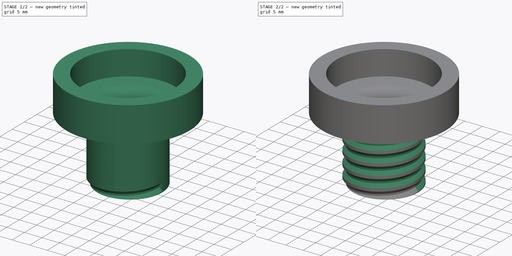
[diagram: build sequence overview — one tinted view per stage of 2, left to right]
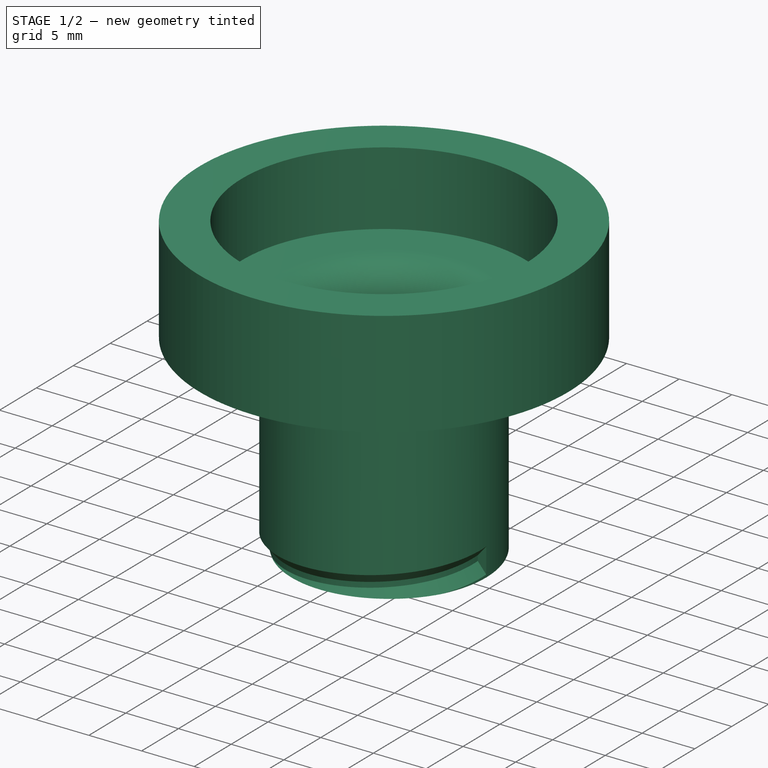
[diagram: stage 1 of 2 — iso view after this stage's code; geometry added in this stage tinted green]
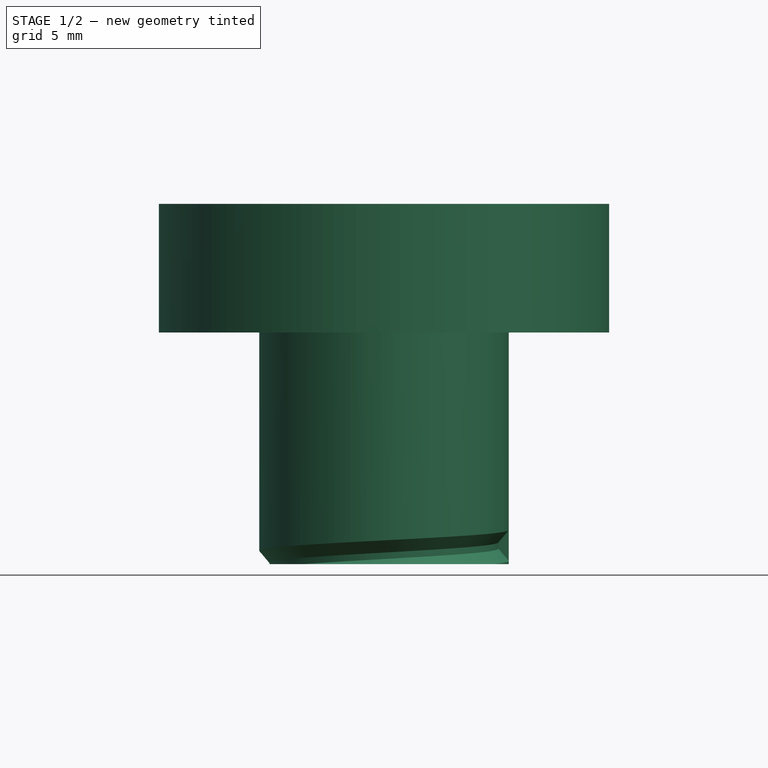
[diagram: stage 1 of 2 — front view after this stage's code; geometry added in this stage tinted green]
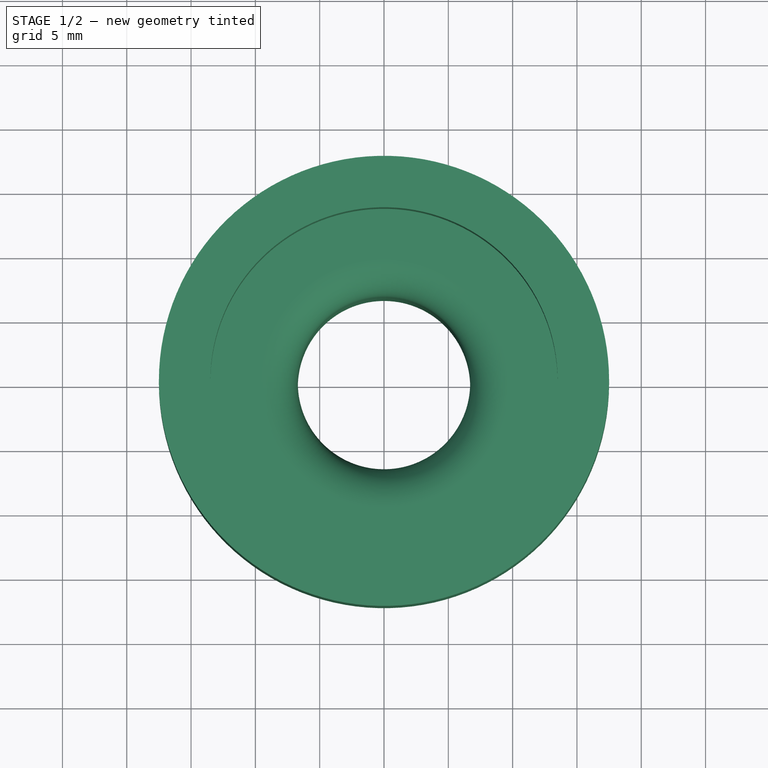
[diagram: stage 1 of 2 — top view after this stage's code; geometry added in this stage tinted green]
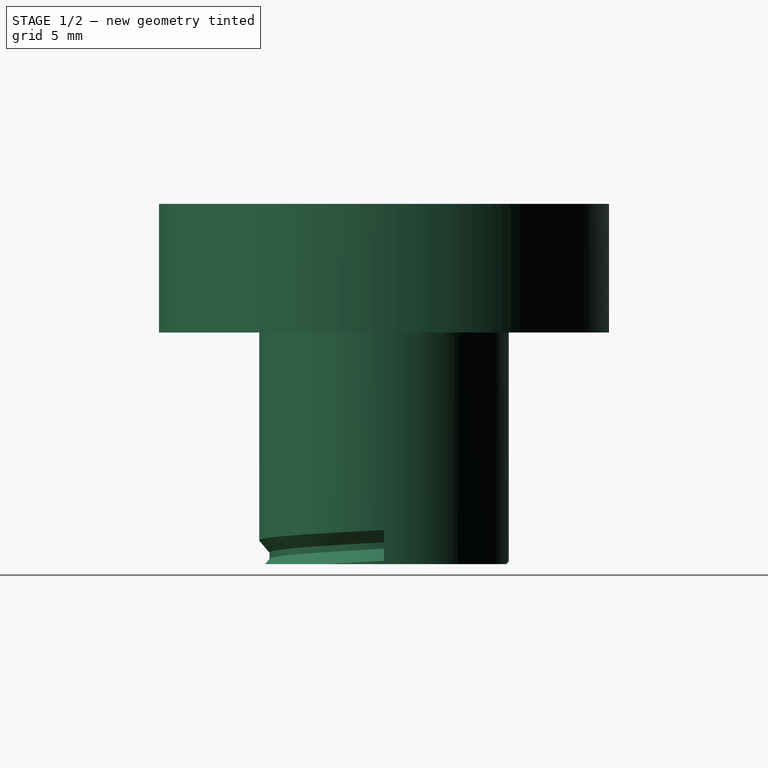
[diagram: stage 1 of 2 — right view after this stage's code; geometry added in this stage tinted green]
FCSTD DOCUMENT  (FreeCAD 0.19R24291 (Git))
Label: Фильтр резьба
License: All rights reserved
LicenseURL: http://en.wikipedia.org/wiki/All_rights_reserved
objects: Sketcher::SketchObject×2, PartDesign::SubtractiveHelix×2, PartDesign::Revolution×1, PartDesign::Body×1
note: 9 computed .brp shape members not serialized (recipe doc carries the construction recipe); baked Part::Feature solids carry a one-line shape summary decoded from their .brp

FEATURE [Sketcher::SketchObject] Sketch
  FullyConstrained = true
  MapMode = 5
  Placement = pos=(0,0,0) rot=(1,0,0;1.5708rad)
  Support = -> [XZ_Plane]
  sketch-geometry (33):
    g0: LineSegment StartX=54.2978 StartY=0 StartZ=0 EndX=39.2978 EndY=0 EndZ=0
    g1: LineSegment StartX=39.2978 StartY=0 StartZ=0 EndX=36.5 EndY=-6 EndZ=0
    g2: LineSegment StartX=36.5 StartY=-6 StartZ=0 EndX=20.5 EndY=-6 EndZ=0
    g3: LineSegment StartX=17.7022 StartY=10 StartZ=0 EndX=16.1022 EndY=10 EndZ=0
    g4: LineSegment StartX=16.1022 StartY=10 StartZ=0 EndX=16.1022 EndY=0 EndZ=0
    g5: LineSegment StartX=9.7 StartY=-8 StartZ=0 EndX=37.7741 EndY=-8 EndZ=0
    g6: LineSegment StartX=37.7741 StartY=-8 StartZ=0 EndX=40.572 EndY=-2 EndZ=0
    g7: LineSegment StartX=40.572 StartY=-2 StartZ=0 EndX=53.0237 EndY=-2 EndZ=0
    g8: LineSegment StartX=53.0237 StartY=-2 StartZ=0 EndX=55.8216 EndY=-8 EndZ=0
    g9: LineSegment StartX=55.8216 StartY=-8 StartZ=0 EndX=61.1631 EndY=-8 EndZ=0
    g10: LineSegment StartX=61.1631 StartY=-8 StartZ=0 EndX=64.8935 EndY=0 EndZ=0
    g11: LineSegment StartX=64.8935 StartY=0 StartZ=0 EndX=64.8935 EndY=1 EndZ=0
    g12: LineSegment StartX=64.8935 StartY=1 StartZ=0 EndX=62.8935 EndY=1 EndZ=0
    g13: LineSegment StartX=62.8935 StartY=1 StartZ=0 EndX=62.8935 EndY=0 EndZ=0
    g14: LineSegment StartX=62.8935 StartY=0 StartZ=0 EndX=60.0957 EndY=-6 EndZ=0
    g15: LineSegment StartX=60.0957 StartY=-6 StartZ=0 EndX=57.0957 EndY=-6 EndZ=0
    g16: LineSegment StartX=57.0957 StartY=-6 StartZ=0 EndX=54.2978 EndY=0 EndZ=0
    g17: LineSegment StartX=20.5 StartY=-6 StartZ=0 EndX=17.7022 EndY=0 EndZ=0
    g18: LineSegment StartX=17.7022 StartY=0 StartZ=0 EndX=17.7022 EndY=10 EndZ=0
    g19: LineSegment StartX=57.0957 StartY=-6 StartZ=0 EndX=55.2831 EndY=-6.84524 EndZ=0
    g20: LineSegment StartX=53.0237 StartY=-2 StartZ=0 EndX=53.0237 EndY=0 EndZ=0
    g21: LineSegment StartX=40.572 StartY=-2 StartZ=0 EndX=38.7594 EndY=-1.15476 EndZ=0
    g22: LineSegment StartX=6.7 StartY=-8 StartZ=0 EndX=6.7 EndY=-26 EndZ=0
    g23: LineSegment StartX=6.7 StartY=-26 StartZ=0 EndX=9.7 EndY=-26 EndZ=0
    g24: LineSegment StartX=9.7 StartY=-26 StartZ=0 EndX=9.7 EndY=-8 EndZ=0
    g25: LineSegment StartX=8.00917 StartY=-5.52188 StartZ=0 EndX=16.1022 EndY=0 EndZ=0
    g26: ArcOfCircle CenterX=9.7 CenterY=-8 CenterZ=0 NormalX=0 NormalY=0 NormalZ=1 AngleXU=0 Radius=3 StartAngle=2.16955 EndAngle=3.14159
    g27: ArcOfCircle CenterX=9.7 CenterY=-8 CenterZ=0 NormalX=0 NormalY=0 NormalZ=1 AngleXU=0 Radius=3 StartAngle=1.5708 EndAngle=3.14159
    g28: LineSegment StartX=9.7 StartY=-5 StartZ=0 EndX=13.5 EndY=-5 EndZ=0
    g29: LineSegment StartX=13.5 StartY=-5 StartZ=0 EndX=13.5 EndY=2 EndZ=0
    g30: LineSegment StartX=13.5 StartY=2 StartZ=0 EndX=17.5 EndY=2 EndZ=0
    g31: LineSegment StartX=17.5 StartY=2 StartZ=0 EndX=17.5 EndY=-8 EndZ=0
    g32: LineSegment StartX=17.5 StartY=-8 StartZ=0 EndX=9.7 EndY=-8 EndZ=0
  constraints (95):
    c: PointOnObject(g0,g-1)
    c: PointOnObject(g0,g-1)
    c: Coincident(g0,g1)
    c: Coincident(g1,g2)
    c: Horizontal(g2)
    c: Horizontal(g3)
    c: Coincident(g3,g4)
    c: Vertical(g4)
    c: Horizontal(g5)
    c: Coincident(g5,g6)
    c: Coincident(g6,g7)
    c: Horizontal(g7)
    c: Coincident(g7,g8)
    c: Coincident(g8,g9)
    c: Horizontal(g9)
    c: Coincident(g9,g10)
    c: Coincident(g10,g11)
    c: Vertical(g11)
    c: Coincident(g11,g12)
    c: Horizontal(g12)
    c: Coincident(g12,g13)
    c: Vertical(g13)
    c: Coincident(g13,g14)
    c: Coincident(g14,g15)
    c: Horizontal(g15)
    c: Coincident(g15,g16)
    c: Coincident(g16,g0)
    c: Distance(g1,g-2) = 36.5
    c: Distance(g2,g-2) = 20.5
    c: Distance(g3) = 1.6
    c: Coincident(g17,g2)
    c: Coincident(g18,g17)
    c: Coincident(g18,g3)
    c: Vertical(g18)
    c: Distance(g1,g-1) = 6
    c: PointOnObject(g17,g-1)
    c: Angle(g2,g17) = 2.00713
    c: Angle(g1,g2) = 2.00713
    c: Distance(g0) = 15
    c: Angle(g0,g16) = 2.00713
    c: Horizontal(g15,g1)
    c: Distance(g15) = 3
    c: Angle(g14,g15) = 2.00713
    c: PointOnObject(g13,g-1)
    c: Distance(g12) = 2
    c: PointOnObject(g10,g-1)
    c: Distance(g1,g5) = 2
    c: Parallel(g6,g1)
    c: Parallel(g8,g16)
    c: Parallel(g10,g14)
    c: Horizontal(g5,g8)
    c: Coincident(g19,g15)
    c: PointOnObject(g19,g8)
    c: Coincident(g20,g7)
    c: PointOnObject(g20,g0)
    c: Vertical(g20)
    c: Equal(g19,g20)
    c: Equal(g20,g12)
    c: Distance(g11) = 1
    c: Distance(g18) = 10
    c: Coincident(g21,g6)
    c: PointOnObject(g21,g1)
    c: Perpendicular(g8,g19)
    c: Perpendicular(g6,g21)
    c: Equal(g21,g20)
    c: Coincident(g22,g23)
    c: Coincident(g23,g24)
    c: Horizontal(g23)
    c: Vertical(g22)
    c: Vertical(g24)
    c: PointOnObject(g25,g-1)
    c: Coincident(g4,g25)
    c: Distance(g23,g-2) = 9.7
    c: Coincident(g24,g5)
    c: Distance(g23) = 3
    c: Distance(g24) = 18
    c: Tangent(g22,g26) = -1.5708
    c: Tangent(g25,g26) = 1.5708
    c: Coincident(g26,g5)
    c: Coincident(g27,g24)
    c: Coincident(g27,g22)
    c: Tangent(g27,g28) = 1.5708
    c: Coincident(g28,g29)
    c: Vertical(g29)
    c: Coincident(g29,g30)
    c: Horizontal(g30)
    c: Coincident(g30,g31)
    c: PointOnObject(g31,g5)
    c: Vertical(g31)
    c: Coincident(g31,g32)
    c: Coincident(g32,g24)
    c: Distance(g30) = 4
    c: Horizontal(g28)
    c: Distance(g28,g-2) = 13.5
    c: Distance(g29) = 7
FEATURE [PartDesign::Revolution] Revolution
  Angle = 360
  Axis = (0,2e-16,1)
  Base = (0,0,0)
  Placement = pos=(0,0,0) rot=(1,0,0;1.5708rad)
  Profile = -> Sketch
  ReferenceAxis = -> Sketch [V_Axis]
  Reversed = true
FEATURE [Sketcher::SketchObject] Sketch001
  ExternalGeometry = -> [Revolution]
  FullyConstrained = false
  MapMode = 5
  Placement = pos=(0,0,0) rot=(1,0,0;1.5708rad)
  Support = -> [XZ_Plane]
  sketch-geometry (11):
    g0: LineSegment StartX=9.7 StartY=-23.35 StartZ=0 EndX=8.9 EndY=-24.55 EndZ=0
    g1: LineSegment StartX=8.9 StartY=-24.55 StartZ=0 EndX=9.7 EndY=-25.75 EndZ=0
    g2: LineSegment StartX=8.9 StartY=-24.8 StartZ=0 EndX=8.9 EndY=-24.55 EndZ=0
    g3: LineSegment StartX=8.9 StartY=-24.55 StartZ=0 EndX=8.9 EndY=-24.3 EndZ=0
    g4: LineSegment StartX=9.7 StartY=-26 StartZ=0 EndX=9.7 EndY=-25.75 EndZ=0
    g5: LineSegment StartX=9.7 StartY=-23.35 StartZ=0 EndX=9.7 EndY=-23.1 EndZ=0
    g6: LineSegment StartX=8.9 StartY=-24.8 StartZ=0 EndX=9.7 EndY=-25.75 EndZ=0
    g7: LineSegment StartX=8.9 StartY=-24.3 StartZ=0 EndX=9.7 EndY=-23.35 EndZ=0
    g8: LineSegment StartX=9.7 StartY=-25.75 StartZ=0 EndX=10.5816 EndY=-25.75 EndZ=0
    g9: LineSegment StartX=10.5816 StartY=-25.75 StartZ=0 EndX=10.5816 EndY=-23.35 EndZ=0
    g10: LineSegment StartX=10.5816 StartY=-23.35 StartZ=0 EndX=9.7 EndY=-23.35 EndZ=0
  constraints (29):
    c: Coincident(g1,g0)
    c: Vertical(g1,g0)
    c: Distance(g0,g-2) = 8.9
    c: Distance(g0,g1) = 2.4
    c: Coincident(g2,g0)
    c: Vertical(g2)
    c: Coincident(g2,g3)
    c: Vertical(g3)
    c: Coincident(g4,g1)
    c: Vertical(g4)
    c: Equal(g3,g2)
    c: Distance(g2,g3) = 0.25
    c: Distance(g4) = 0.25
    c: Coincident(g4,g-3)
    c: Equal(g1,g0)
    c: PointOnObject(g5,g-3)
    c: Equal(g5,g4)
    c: Coincident(g6,g2)
    c: Coincident(g7,g3)
    c: Coincident(g7,g0)
    c: Coincident(g6,g1)
    c: Coincident(g8,g9)
    c: Coincident(g9,g10)
    c: Horizontal(g8)
    c: Horizontal(g10)
    c: Vertical(g9)
    c: Coincident(g8,g6)
    c: Coincident(g10,g7)
    c: Coincident(g5,g7)
FEATURE [PartDesign::SubtractiveHelix] SubtractiveHelix
  Angle = 0
  Axis = (0,-2e-16,1)
  Base = (0,0,0)
  BaseFeature = -> Revolution
  HasBeenEdited = true
  Height = 9.6707
  LeftHanded = false
  Mode = 0
  Outside = false
  Pitch = 3.22357
  Placement = pos=(0,0,0) rot=(1,0,0;1.5708rad)
  Profile = -> Sketch001
  ReferenceAxis = -> Sketch001 [V_Axis]
  Reversed = true
  Turns = 3
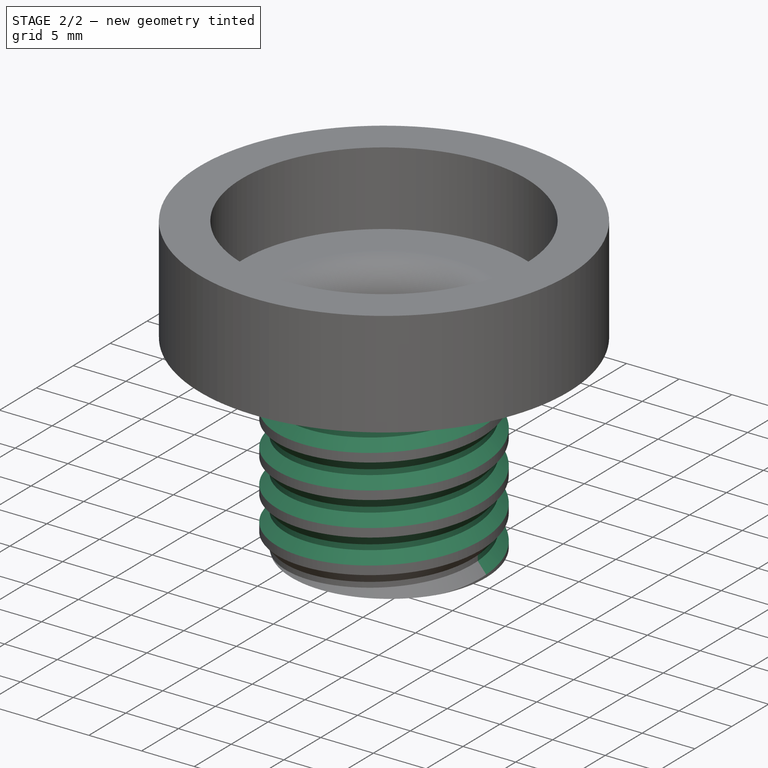
[diagram: stage 2 of 2 — iso view after this stage's code; geometry added in this stage tinted green]
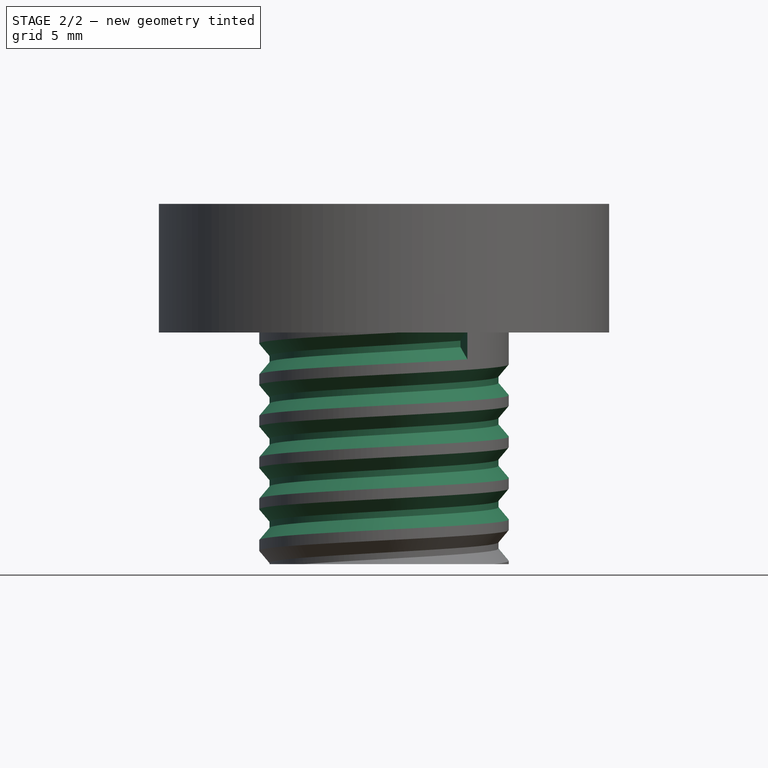
[diagram: stage 2 of 2 — front view after this stage's code; geometry added in this stage tinted green]
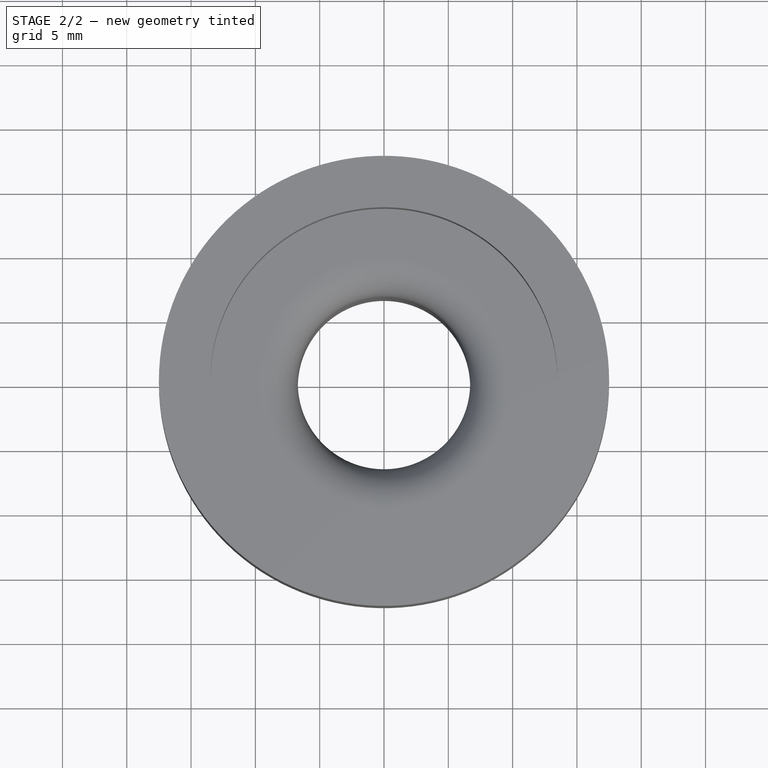
[diagram: stage 2 of 2 — top view after this stage's code; geometry added in this stage tinted green]
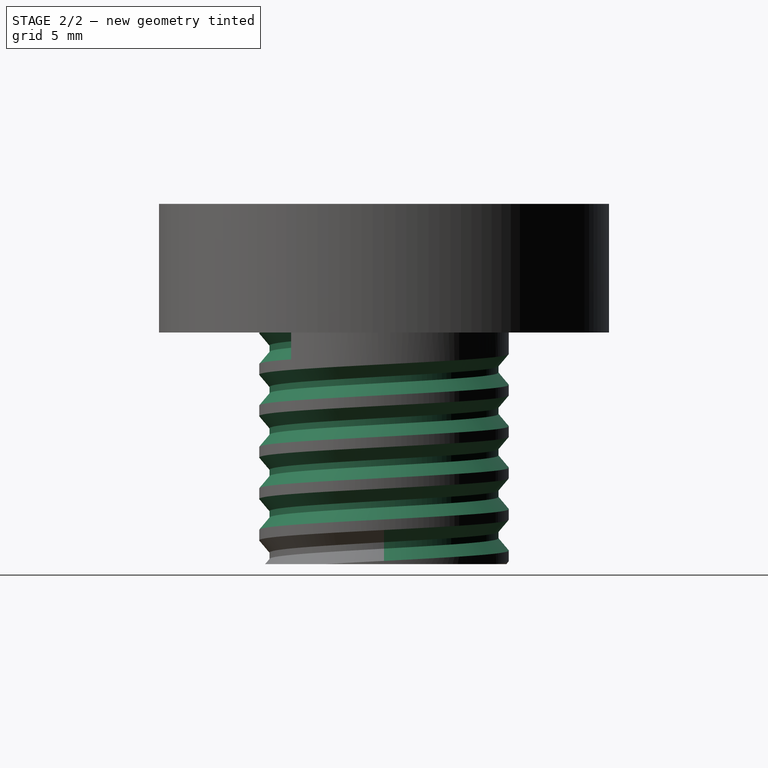
[diagram: stage 2 of 2 — right view after this stage's code; geometry added in this stage tinted green]
FEATURE [PartDesign::SubtractiveHelix] SubtractiveHelix001
  Angle = 0
  Axis = (0,-2e-16,1)
  Base = (0,0,0)
  BaseFeature = -> SubtractiveHelix
  HasBeenEdited = true
  Height = 15.67
  LeftHanded = false
  Mode = 0
  Outside = false
  Pitch = 3.22
  Placement = pos=(0,0,0) rot=(1,0,0;1.5708rad)
  Profile = -> Sketch001
  ReferenceAxis = -> Sketch001 [V_Axis]
  Turns = 4.86646
FEATURE [PartDesign::Body] Body
  Group = -> [Sketch,Revolution,Sketch001,SubtractiveHelix,SubtractiveHelix001]
  Origin = -> Origin
  Tip = -> SubtractiveHelix001
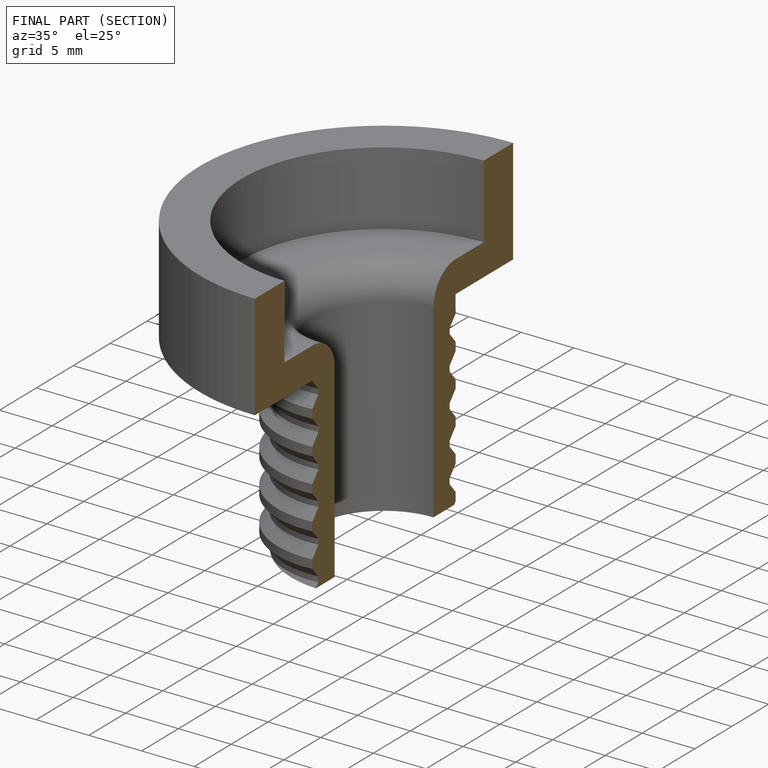
[diagram: finished part — half-section view (interior)]
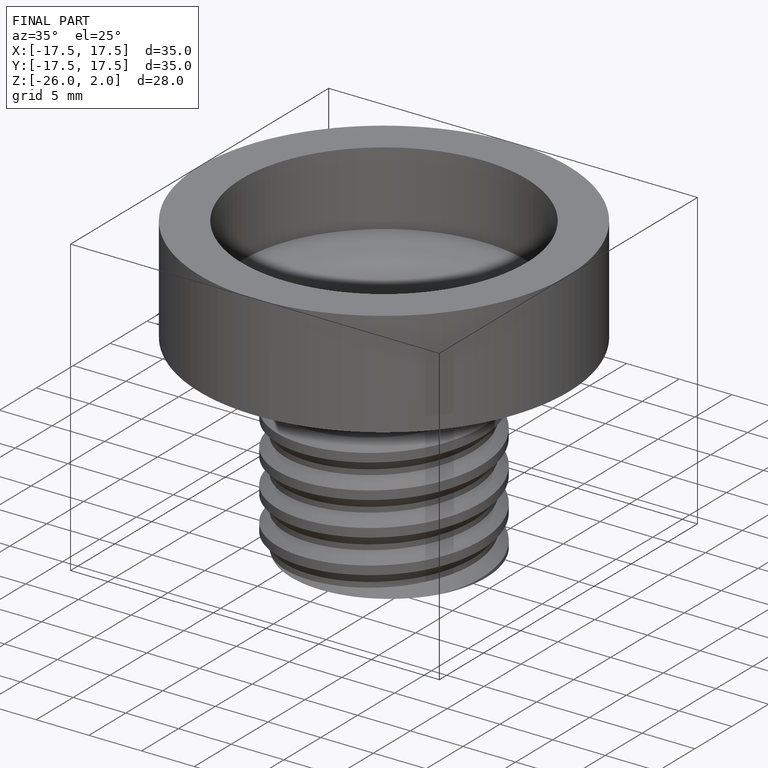
[diagram: finished part — iso view with bounding-box wireframe]
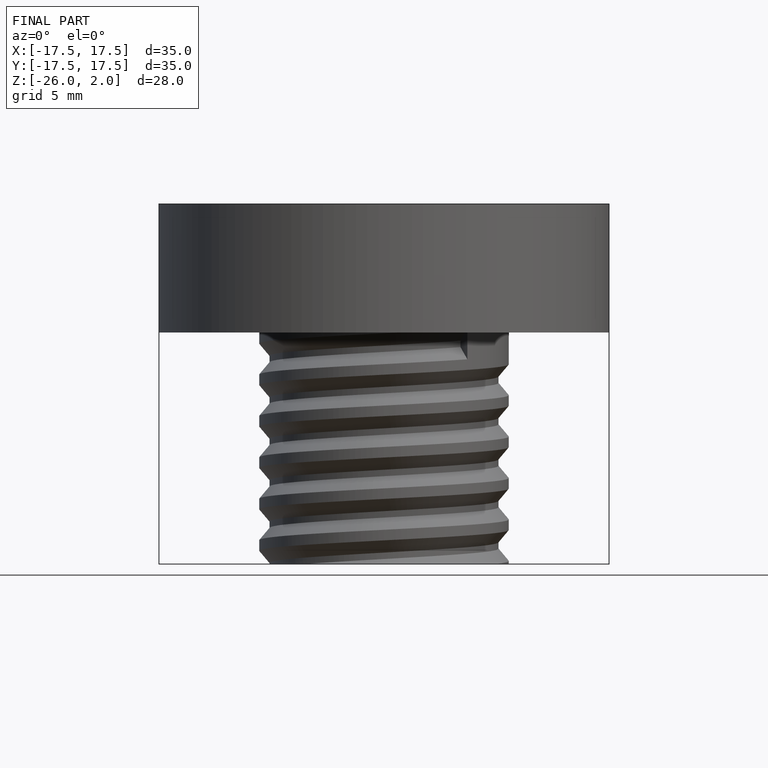
[diagram: finished part — front view with bounding-box wireframe]
